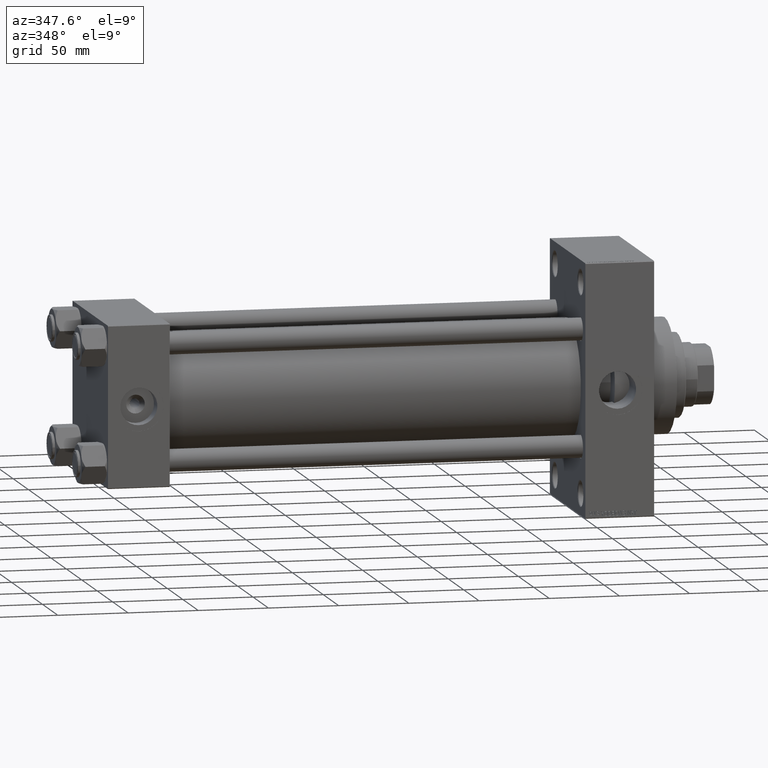
[diagram: clean part render]
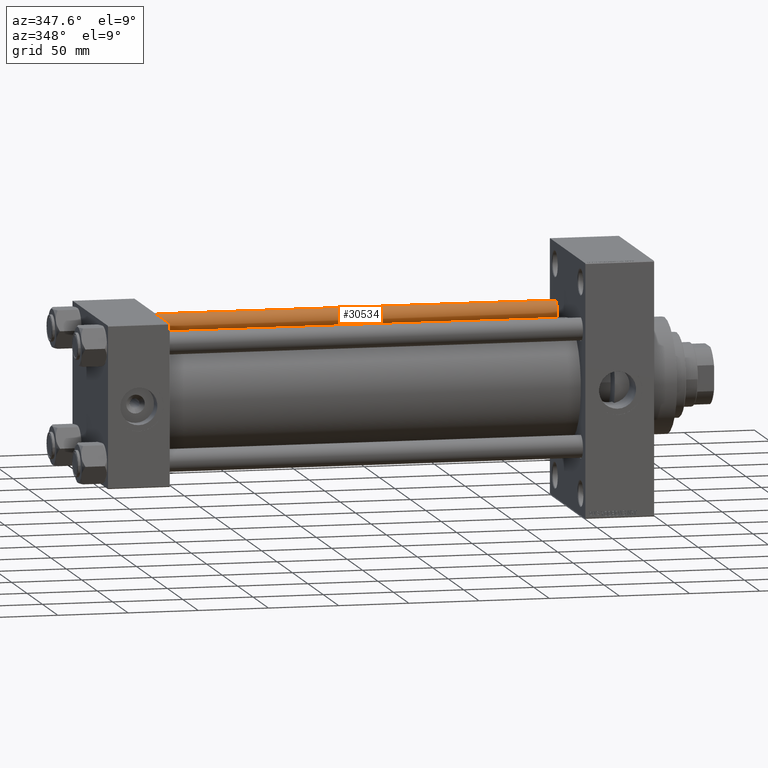
[diagram: same view with one face highlighted and labeled with its STEP entity id]
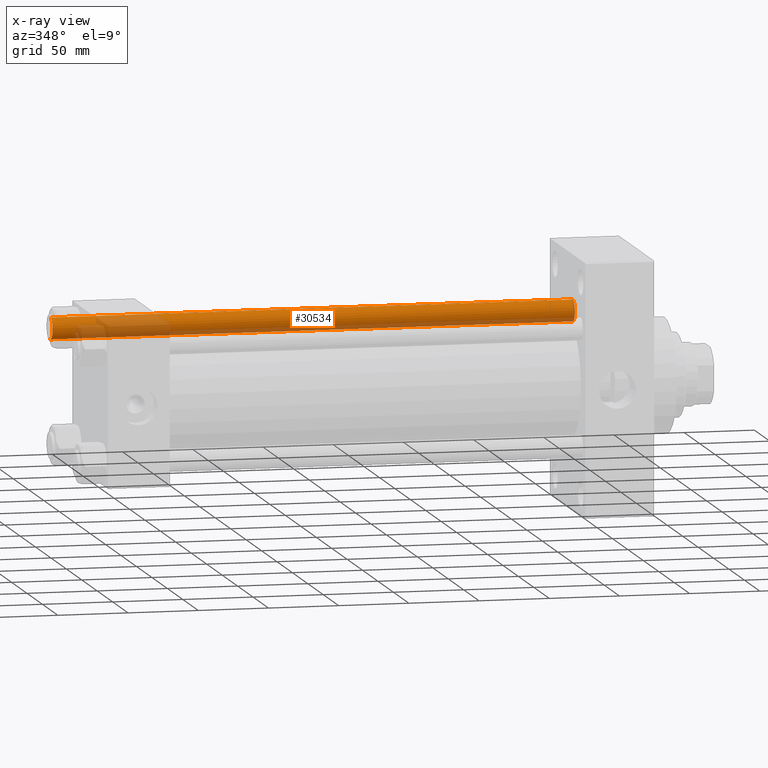
[diagram: x-ray of the same camera — body ghosted, the highlighted face saturated]
A machine part, auxiliary view. The second image highlights one B-rep face of the part: STEP entity #30534.
The next image is the same camera in x-ray: the body ghosted, the highlighted face saturated — about 30% of this face is hidden behind the body in this view.
In plain terms, the highlighted cylindrical surface (edge-blend (fillet) strip) has radius 8 mm, axis along (-1, -0, 0).
Its self-contained STEP definition (entity closure, byte-faithful):
#68 = DIRECTION ( 'NONE',  ( -0.000000000000000000, -0.000000000000000000, -1.000000000000000000 ) ) ;
#3219 = DIRECTION ( 'NONE',  ( -0.000000000000000000, -0.000000000000000000, 1.000000000000000000 ) ) ;
#4703 = AXIS2_PLACEMENT_3D ( 'NONE', #37717, #3219, #14806 ) ;
#5481 = AXIS2_PLACEMENT_3D ( 'NONE', #32398, #13754, #5931 ) ;
#5931 = DIRECTION ( 'NONE',  ( -1.000000000000000000, 0.000000000000000000, 0.000000000000000000 ) ) ;
#6460 = VECTOR ( 'NONE', #32579, 1000.000000000000000 ) ;
#7450 = EDGE_LOOP ( 'NONE', ( #12187, #40579, #7638, #19465 ) ) ;
#7638 = ORIENTED_EDGE ( 'NONE', *, *, #39857, .T. ) ;
#7839 = VERTEX_POINT ( 'NONE', #39325 ) ;
#8603 = LINE ( 'NONE', #35556, #32379 ) ;
#12187 = ORIENTED_EDGE ( 'NONE', *, *, #15146, .F. ) ;
#13754 = DIRECTION ( 'NONE',  ( -0.000000000000000000, -0.000000000000000000, -1.000000000000000000 ) ) ;
#13757 = DIRECTION ( 'NONE',  ( 1.000000000000000000, 0.000000000000000000, 0.000000000000000000 ) ) ;
#13979 = CARTESIAN_POINT ( 'NONE',  ( -8.000000000000000000, 0.000000000000000000, 372.5000000000000000 ) ) ;
#13990 = CARTESIAN_POINT ( 'NONE',  ( 0.000000000000000000, 0.000000000000000000, 372.5000000000000000 ) ) ;
#14392 = CARTESIAN_POINT ( 'NONE',  ( 8.000000000000000000, 9.797174393178825657E-16, 372.5000000000000000 ) ) ;
#14806 = DIRECTION ( 'NONE',  ( 1.000000000000000000, 0.000000000000000000, 0.000000000000000000 ) ) ;
#15146 = EDGE_CURVE ( 'NONE', #24224, #44527, #8603, .T. ) ;
#19465 = ORIENTED_EDGE ( 'NONE', *, *, #31770, .T. ) ;
#22924 = CARTESIAN_POINT ( 'NONE',  ( 8.000000000000000000, 9.797174393178825657E-16, 0.5000000000000559552 ) ) ;
#23211 = CIRCLE ( 'NONE', #4703, 8.000000000000000000 ) ;
#24224 = VERTEX_POINT ( 'NONE', #14392 ) ;
#29053 = LINE ( 'NONE', #32339, #6460 ) ;
#30211 = CIRCLE ( 'NONE', #33399, 8.000000000000000000 ) ;
#30534 = ADVANCED_FACE ( 'NONE', ( #44213 ), #40431, .T. ) ;
#31770 = EDGE_CURVE ( 'NONE', #7839, #44527, #23211, .T. ) ;
#32339 = CARTESIAN_POINT ( 'NONE',  ( -8.000000000000000000, 0.000000000000000000, 373.0000000000000000 ) ) ;
#32379 = VECTOR ( 'NONE', #68, 1000.000000000000000 ) ;
#32398 = CARTESIAN_POINT ( 'NONE',  ( 0.000000000000000000, 0.000000000000000000, 373.0000000000000000 ) ) ;
#32579 = DIRECTION ( 'NONE',  ( -0.000000000000000000, -0.000000000000000000, -1.000000000000000000 ) ) ;
#33399 = AXIS2_PLACEMENT_3D ( 'NONE', #13990, #48237, #13757 ) ;
#35556 = CARTESIAN_POINT ( 'NONE',  ( 8.000000000000000000, 9.797174393178825657E-16, 373.0000000000000000 ) ) ;
#37717 = CARTESIAN_POINT ( 'NONE',  ( 0.000000000000000000, 0.000000000000000000, 0.5000000000000559552 ) ) ;
#39325 = CARTESIAN_POINT ( 'NONE',  ( -8.000000000000000000, 0.000000000000000000, 0.5000000000000559552 ) ) ;
#39857 = EDGE_CURVE ( 'NONE', #45977, #7839, #29053, .T. ) ;
#40431 = CYLINDRICAL_SURFACE ( 'NONE', #5481, 8.000000000000000000 ) ;
#40579 = ORIENTED_EDGE ( 'NONE', *, *, #46671, .T. ) ;
#44213 = FACE_OUTER_BOUND ( 'NONE', #7450, .T. ) ;
#44527 = VERTEX_POINT ( 'NONE', #22924 ) ;
#45977 = VERTEX_POINT ( 'NONE', #13979 ) ;
#46671 = EDGE_CURVE ( 'NONE', #24224, #45977, #30211, .T. ) ;
#48237 = DIRECTION ( 'NONE',  ( 0.000000000000000000, 0.000000000000000000, -1.000000000000000000 ) ) ;